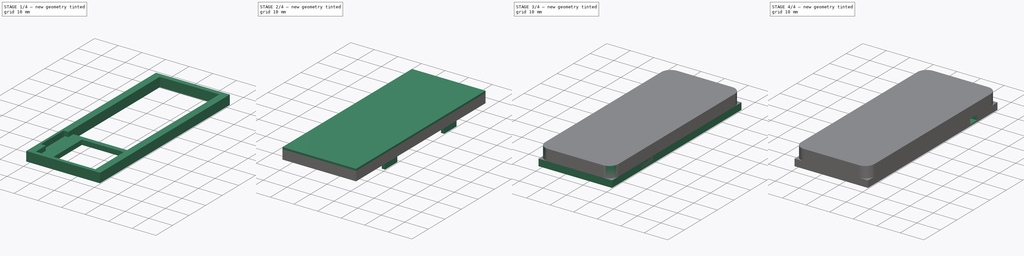
[diagram: build sequence overview — one tinted view per stage of 4, left to right]
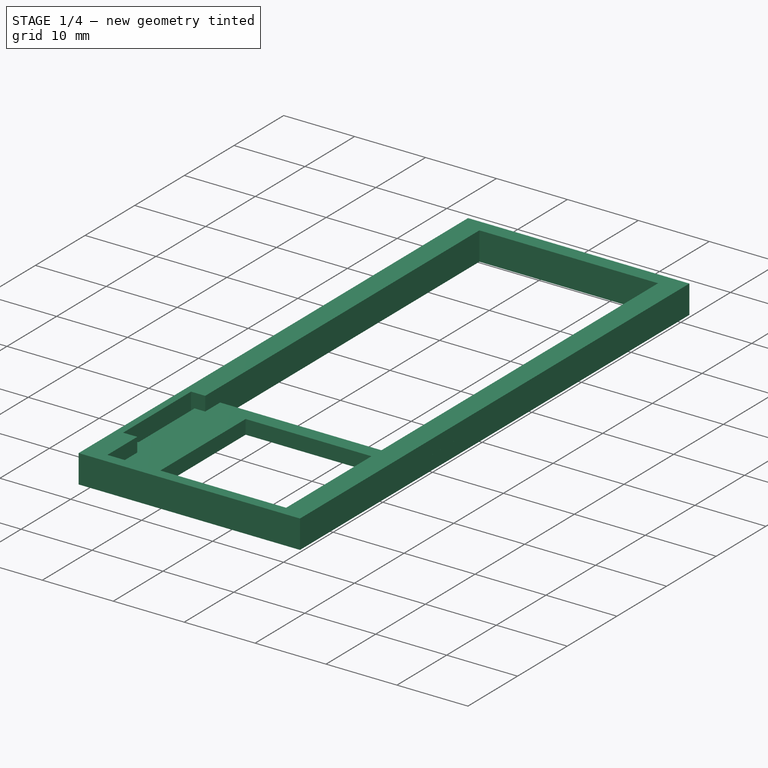
[diagram: stage 1 of 4 — iso view after this stage's code; geometry added in this stage tinted green]
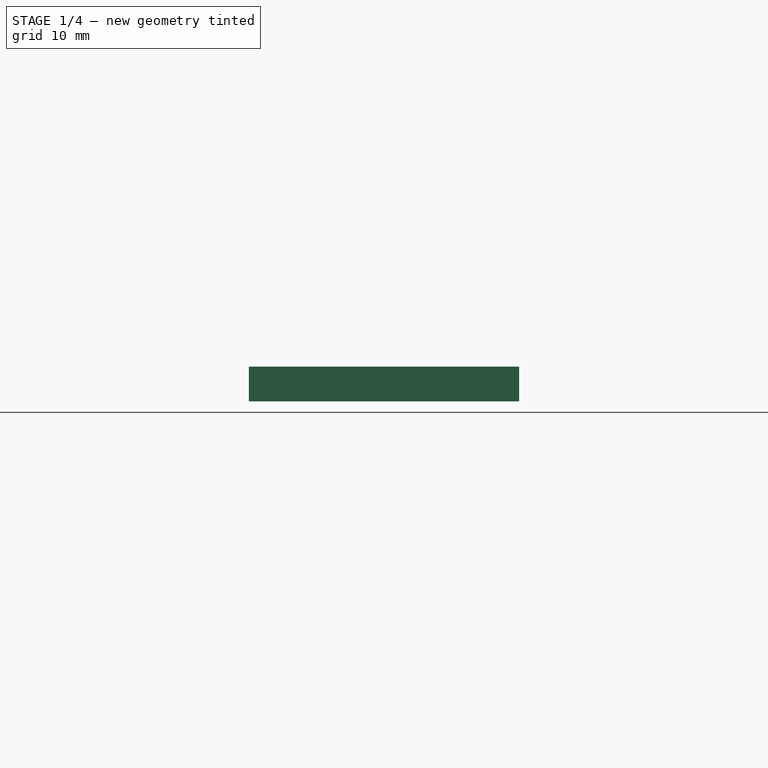
[diagram: stage 1 of 4 — front view after this stage's code; geometry added in this stage tinted green]
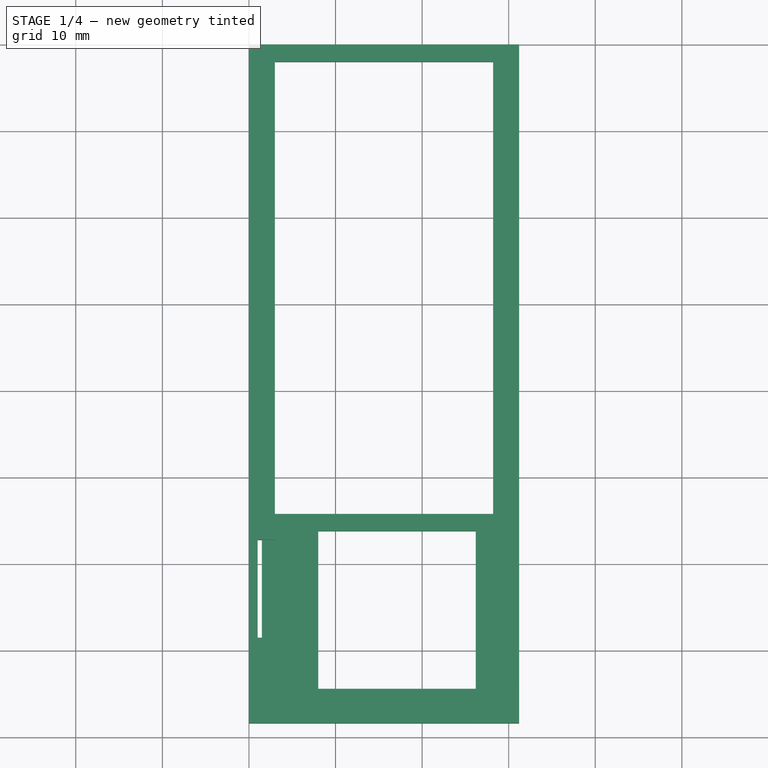
[diagram: stage 1 of 4 — top view after this stage's code; geometry added in this stage tinted green]
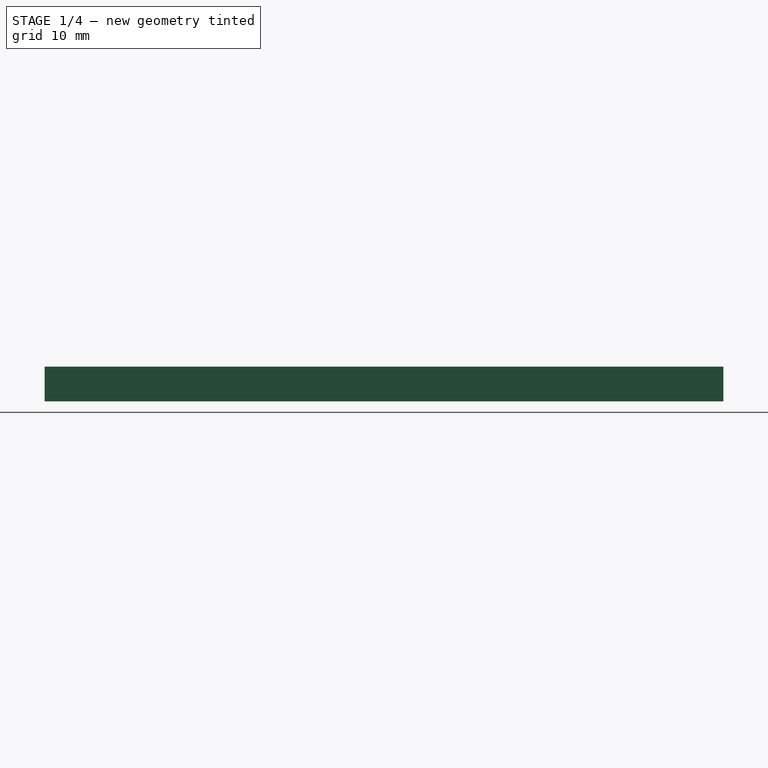
[diagram: stage 1 of 4 — right view after this stage's code; geometry added in this stage tinted green]
FCSTD DOCUMENT  (FreeCAD 0.21R33771 (Git))
Label: gpspeed-2.0
License: All rights reserved
LicenseURL: http://en.wikipedia.org/wiki/All_rights_reserved
objects: Sketcher::SketchObject×11, PartDesign::Pad×7, PartDesign::Pocket×4, PartDesign::Fillet×3, PartDesign::Body×3, Part::Feature×3
note: 45 computed .brp shape members not serialized (recipe doc carries the construction recipe); baked Part::Feature solids carry a one-line shape summary decoded from their .brp

FEATURE [Sketcher::SketchObject] Sketch
  FullyConstrained = true
  MapMode = 5
  Support = -> [XY_Plane]
  sketch-geometry (12):
    g0: LineSegment StartX=3 StartY=-54.2 StartZ=0 EndX=28.2 EndY=-54.2 EndZ=0
    g1: LineSegment StartX=28.2 StartY=-54.2 StartZ=0 EndX=28.2 EndY=-2 EndZ=0
    g2: LineSegment StartX=28.2 StartY=-2 StartZ=0 EndX=3 EndY=-2 EndZ=0
    g3: LineSegment StartX=3 StartY=-2 StartZ=0 EndX=3 EndY=-54.2 EndZ=0
    g4: LineSegment StartX=0 StartY=0 StartZ=0 EndX=31.2 EndY=0 EndZ=0
    g5: LineSegment StartX=31.2 StartY=0 StartZ=0 EndX=31.2 EndY=-78.4 EndZ=0
    g6: LineSegment StartX=31.2 StartY=-78.4 StartZ=0 EndX=0 EndY=-78.4 EndZ=0
    g7: LineSegment StartX=0 StartY=-78.4 StartZ=0 EndX=0 EndY=0 EndZ=0
    g8: LineSegment StartX=8 StartY=-56.2 StartZ=0 EndX=26.2 EndY=-56.2 EndZ=0
    g9: LineSegment StartX=26.2 StartY=-56.2 StartZ=0 EndX=26.2 EndY=-74.4 EndZ=0
    g10: LineSegment StartX=26.2 StartY=-74.4 StartZ=0 EndX=8 EndY=-74.4 EndZ=0
    g11: LineSegment StartX=8 StartY=-74.4 StartZ=0 EndX=8 EndY=-56.2 EndZ=0
  constraints (35):
    c: Coincident(g0,g1)
    c: Coincident(g1,g2)
    c: Coincident(g2,g3)
    c: Coincident(g3,g0)
    c: Horizontal(g0)
    c: Vertical(g3)
    c: DistanceX(g0,g0) = 25.2
    c: DistanceY(g1,g1) = 52.2
    c: Coincident(g4,g5)
    c: Coincident(g5,g6)
    c: Coincident(g6,g7)
    c: Coincident(g7,g4)
    c: Horizontal(g6)
    c: Vertical(g7)
    c: DistanceX(g4,g2) = 3
    c: DistanceY(g1,g4) = 2
    c: Vertical(g5)
    c: Coincident(g8,g9)
    c: Coincident(g9,g10)
    c: Coincident(g10,g11)
    c: Coincident(g11,g8)
    c: Horizontal(g8)
    c: Horizontal(g10)
    c: Vertical(g9)
    c: Vertical(g11)
    c: Equal(g8,g9)
    c: DistanceY(g11,g11) = 18.2
    c: DistanceY(g9,g0) = 2
    c: DistanceX(g8,g0) = 2
    c: DistanceY(g5,g9) = 4
    c: Vertical(g1)
    c: Horizontal(g2)
    c: Coincident(g4,g-1)
    c: Horizontal(g4)
    c: DistanceX(g1,g4) = 3
FEATURE [PartDesign::Pad] Pad
  Direction = (1,1,1)
  Length = 2
  Length2 = 100
  Profile = -> Sketch
  Type = 0
FEATURE [Sketcher::SketchObject] Sketch001
  FullyConstrained = false
  MapMode = 5
  Support = -> [XY_Plane001]
  sketch-geometry (12):
    g0: LineSegment StartX=0 StartY=0 StartZ=0 EndX=31.2 EndY=0 EndZ=0
    g1: LineSegment StartX=31.2 StartY=0 StartZ=0 EndX=31.2 EndY=-78.4 EndZ=0
    g2: LineSegment StartX=31.2 StartY=-78.4 StartZ=0 EndX=0 EndY=-78.4 EndZ=0
    g3: LineSegment StartX=0 StartY=-78.4 StartZ=0 EndX=0 EndY=0 EndZ=0
    g4: LineSegment StartX=3 StartY=-2 StartZ=0 EndX=28.2 EndY=-2 EndZ=0
    g5: LineSegment StartX=28.2 StartY=-2 StartZ=0 EndX=28.2 EndY=-76.9 EndZ=0
    g6: LineSegment StartX=28.2 StartY=-76.9 StartZ=0 EndX=3 EndY=-76.9 EndZ=0
    g7: LineSegment StartX=3 StartY=-76.9 StartZ=0 EndX=3 EndY=-70.8861 EndZ=0
    g8: LineSegment StartX=3 StartY=-57.2064 StartZ=0 EndX=1 EndY=-57.2064 EndZ=0
    g9: LineSegment StartX=1 StartY=-57.2064 StartZ=0 EndX=1 EndY=-70.8861 EndZ=0
    g10: LineSegment StartX=1 StartY=-70.8861 StartZ=0 EndX=3 EndY=-70.8861 EndZ=0
    g11: LineSegment StartX=3 StartY=-57.2064 StartZ=0 EndX=3 EndY=-2 EndZ=0
  constraints (32):
    c: Coincident(g0,g1)
    c: Coincident(g1,g2)
    c: Coincident(g2,g3)
    c: Coincident(g3,g0)
    c: Horizontal(g0)
    c: Horizontal(g2)
    c: Vertical(g1)
    c: Vertical(g3)
    c: Coincident(g0,g-1)
    c: DistanceY(g1,g1) = 78.4
    c: DistanceX(g2,g2) = 31.2
    c: Coincident(g4,g5)
    c: Coincident(g5,g6)
    c: Coincident(g6,g7)
    c: Coincident(g11,g4)
    c: Horizontal(g4)
    c: Horizontal(g6)
    c: Vertical(g5)
    c: Vertical(g7)
    c: DistanceX(g5,g1) = 3
    c: DistanceY(g1,g5) = 1.5
    c: DistanceX(g2,g6) = 3
    c: DistanceY(g4,g0) = 2
    c: Horizontal(g8)
    c: Coincident(g8,g9)
    c: Vertical(g9)
    c: Coincident(g9,g10)
    c: Horizontal(g10)
    c: Coincident(g7,g10)
    c: Coincident(g11,g8)
    c: Tangent(g7,g11)
    c: Distance(g8,g3) = 1
FEATURE [PartDesign::Pad] Pad001
  Direction = (1,1,1)
  Length = 4
  Length2 = 100
  Profile = -> Sketch001
  Type = 0
FEATURE [Sketcher::SketchObject] Sketch007
  ExternalGeometry = -> [Pad]
  FullyConstrained = false
  MapMode = 5
  Placement = pos=(0,0,0) rot=(1,0,0;3.14159rad)
  Support = -> [Pad]
  sketch-geometry (16):
    g0: LineSegment StartX=-9.78288 StartY=68.5 StartZ=0 EndX=1.5 EndY=68.5 EndZ=0
    g1: LineSegment StartX=1.5 StartY=68.5 StartZ=0 EndX=1.5 EndY=53.3 EndZ=0
    g2: LineSegment StartX=1.5 StartY=53.3 StartZ=0 EndX=-9.78288 EndY=53.3 EndZ=0
    g3: LineSegment StartX=-9.78288 StartY=53.3 StartZ=0 EndX=-9.78288 EndY=68.5 EndZ=0
    g4: LineSegment StartX=-11.0683 StartY=25.1 StartZ=0 EndX=1.5 EndY=25.1 EndZ=0
    g5: LineSegment StartX=1.5 StartY=25.1 StartZ=0 EndX=1.5 EndY=9.9 EndZ=0
    g6: LineSegment StartX=1.5 StartY=9.9 StartZ=0 EndX=-11.0683 EndY=9.9 EndZ=0
    g7: LineSegment StartX=-11.0683 StartY=9.9 StartZ=0 EndX=-11.0683 EndY=25.1 EndZ=0
    g8: LineSegment StartX=29.7 StartY=68.5 StartZ=0 EndX=58.0831 EndY=68.5 EndZ=0
    g9: LineSegment StartX=58.0831 StartY=68.5 StartZ=0 EndX=58.0831 EndY=53.3 EndZ=0
    g10: LineSegment StartX=58.0831 StartY=53.3 StartZ=0 EndX=29.7 EndY=53.3 EndZ=0
    g11: LineSegment StartX=29.7 StartY=53.3 StartZ=0 EndX=29.7 EndY=68.5 EndZ=0
    g12: LineSegment StartX=29.7 StartY=25.1 StartZ=0 EndX=61.6229 EndY=25.1 EndZ=0
    g13: LineSegment StartX=61.6229 StartY=25.1 StartZ=0 EndX=61.6229 EndY=9.9 EndZ=0
    g14: LineSegment StartX=61.6229 StartY=9.9 StartZ=0 EndX=29.7 EndY=9.9 EndZ=0
    g15: LineSegment StartX=29.7 StartY=9.9 StartZ=0 EndX=29.7 EndY=25.1 EndZ=0
  constraints (45):
    c: Coincident(g0,g1)
    c: Coincident(g1,g2)
    c: Coincident(g2,g3)
    c: Coincident(g3,g0)
    c: Horizontal(g0)
    c: Horizontal(g2)
    c: Vertical(g1)
    c: Vertical(g3)
    c: Coincident(g4,g5)
    c: Coincident(g5,g6)
    c: Coincident(g6,g7)
    c: Coincident(g7,g4)
    c: Horizontal(g4)
    c: Horizontal(g6)
    c: Vertical(g5)
    c: Vertical(g7)
    c: Equal(g5,g1)
    c: DistanceY(g1,g1) = 15.2
    c: DistanceY(g0,g-3) = 9.9
    c: DistanceY(g-1,g6) = 9.9
    c: PointOnObject(g4,g1)
    c: DistanceX(g-3,g0) = 1.5
    c: Coincident(g8,g9)
    c: Coincident(g9,g10)
    c: Coincident(g10,g11)
    c: Coincident(g11,g8)
    c: Horizontal(g8)
    c: Horizontal(g10)
    c: Vertical(g9)
    c: Vertical(g11)
    c: PointOnObject(g8,g0)
    c: Coincident(g12,g13)
    c: Coincident(g13,g14)
    c: Coincident(g14,g15)
    c: Coincident(g15,g12)
    c: Horizontal(g12)
    c: Horizontal(g14)
    c: Vertical(g13)
    c: Vertical(g15)
    c: Equal(g15,g11)
    c: PointOnObject(g12,g4)
    c: PointOnObject(g12,g11)
    c: DistanceX(g8,g-3) = 1.5
    c: Equal(g1,g11)
    c: Equal(g11,g15)
FEATURE [PartDesign::Pocket] Pocket002
  BaseFeature = -> Pad
  Direction = (1,1,1)
  Length = 5
  Length2 = 100
  Profile = -> Sketch007
  Type = 0
FEATURE [PartDesign::Body] Body001  label="dessous"
  Group = -> [Sketch001,Pad001,Sketch002,Pad002,Sketch006,Pocket001,Sketch009,Pad006,Fillet001]
  Origin = -> Origin001
  Placement = pos=(0,0,6) rot=(0,0,1;0rad)
  Tip = -> Fillet001
FEATURE [PartDesign::Fillet] Fillet002
  Base = -> Pocket002 [Edge2,Edge1,Edge69,Edge70]
  BaseFeature = -> Pocket002
  Radius = 4
  SupportTransform = false
  UseAllEdges = false
FEATURE [PartDesign::Body] Body  label="milieu"
  Group = -> [Sketch,Pad,Sketch007,Pocket002,Fillet002]
  Origin = -> Origin
  Tip = -> Fillet002
FEATURE [Part::Feature] Body003  label="dessus001"
  Placement = pos=(0,0,25) rot=(0,0,1;0rad)
  shape: bbox 31.2 x 78.4 x 5.1 mm, 65 faces (baked)
FEATURE [Part::Feature] Body004  label="dessous001"
  Placement = pos=(0,0,27) rot=(0,0,1;0rad)
  shape: bbox 31.2 x 78.4 x 7 mm, 52 faces (baked)
FEATURE [Part::Feature] Body005  label="milieu001"
  Placement = pos=(0,0,25) rot=(0,0,1;0rad)
  shape: bbox 31.2 x 78.4 x 2 mm, 34 faces (baked)
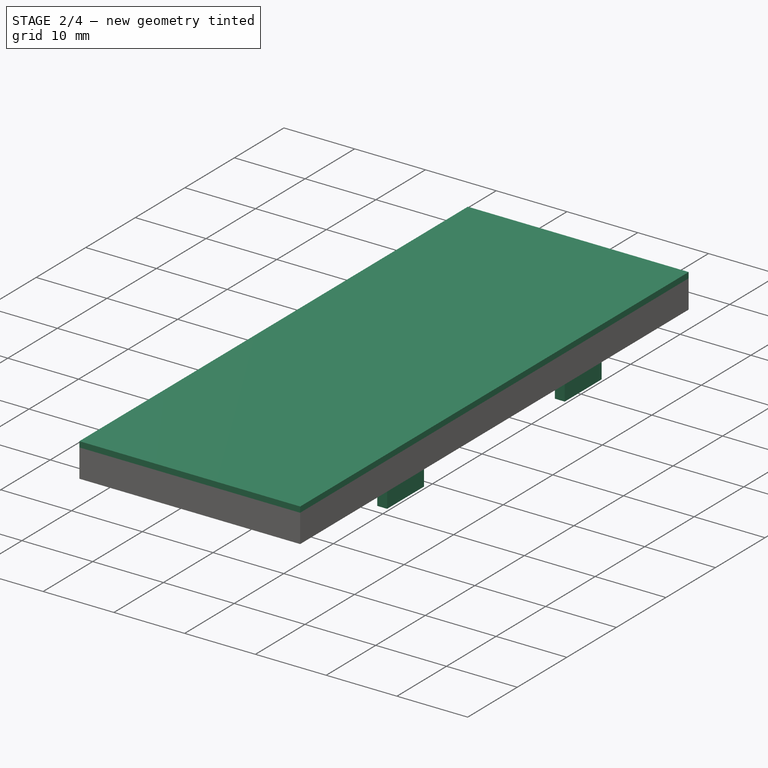
[diagram: stage 2 of 4 — iso view after this stage's code; geometry added in this stage tinted green]
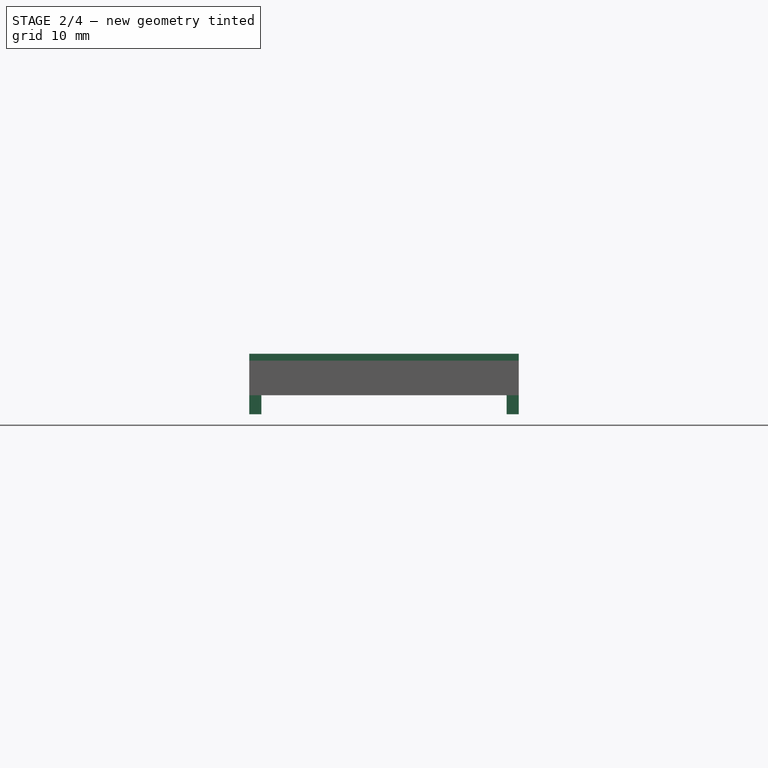
[diagram: stage 2 of 4 — front view after this stage's code; geometry added in this stage tinted green]
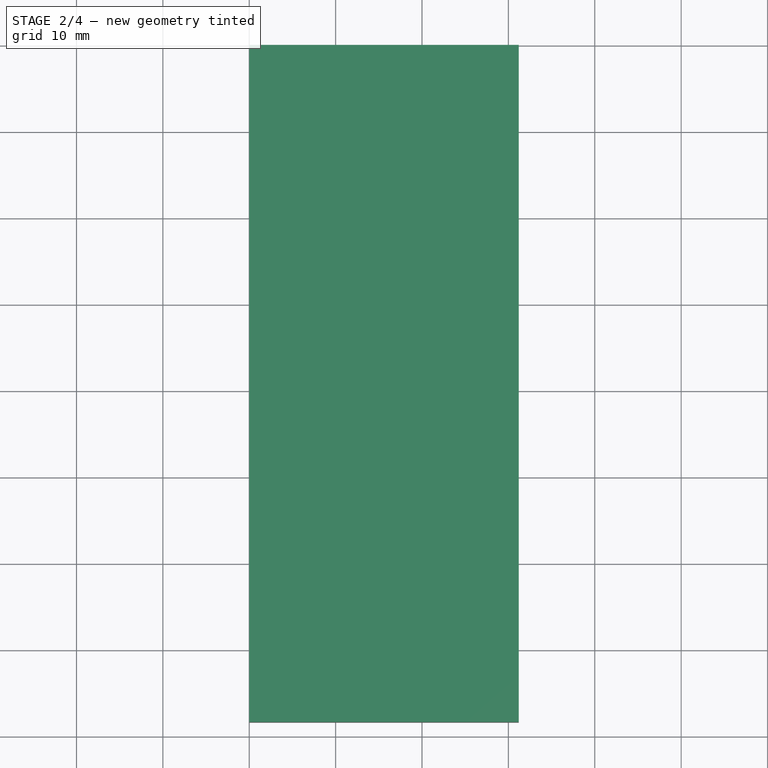
[diagram: stage 2 of 4 — top view after this stage's code; geometry added in this stage tinted green]
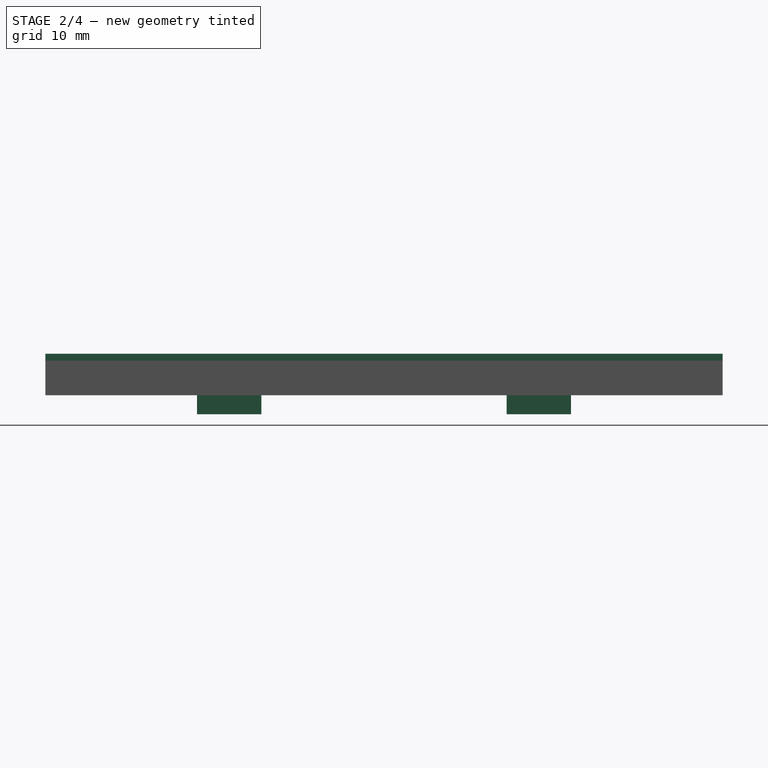
[diagram: stage 2 of 4 — right view after this stage's code; geometry added in this stage tinted green]
FEATURE [Sketcher::SketchObject] Sketch002
  ExternalGeometry = -> [Pad001]
  FullyConstrained = true
  MapMode = 5
  Placement = pos=(0,0,4) rot=(0,0,1;0rad)
  Support = -> [Pad001]
  sketch-geometry (4):
    g0: LineSegment StartX=31.2 StartY=-78.4 StartZ=0 EndX=0 EndY=-78.4 EndZ=0
    g1: LineSegment StartX=0 StartY=-78.4 StartZ=0 EndX=0 EndY=0 EndZ=0
    g2: LineSegment StartX=0 StartY=0 StartZ=0 EndX=31.2 EndY=0 EndZ=0
    g3: LineSegment StartX=31.2 StartY=0 StartZ=0 EndX=31.2 EndY=-78.4 EndZ=0
  constraints (10):
    c: Coincident(g0,g1)
    c: Coincident(g1,g2)
    c: Coincident(g2,g3)
    c: Coincident(g3,g0)
    c: Horizontal(g0)
    c: Horizontal(g2)
    c: Vertical(g1)
    c: Vertical(g3)
    c: Coincident(g0,g-3)
    c: Coincident(g1,g-1)
FEATURE [PartDesign::Pad] Pad002
  BaseFeature = -> Pad001
  Direction = (1,1,1)
  Length = 0.8
  Length2 = 100
  Profile = -> Sketch002
  Type = 0
FEATURE [Sketcher::SketchObject] Sketch006
  ExternalGeometry = -> [Pad002]
  FullyConstrained = false
  MapMode = 5
  Placement = pos=(0,0,0) rot=(0,0.707107,0.707107;3.14159rad)
  Support = -> [Pad002]
  sketch-geometry (5):
    g0: LineSegment StartX=-15.6 StartY=12.3411 StartZ=0 EndX=-15.6 EndY=-16.7245 EndZ=0
    g1: LineSegment StartX=-17.6 StartY=2 StartZ=0 EndX=-13.6 EndY=2 EndZ=0
    g2: LineSegment StartX=-13.6 StartY=2 StartZ=0 EndX=-13.6 EndY=0 EndZ=0
    g3: LineSegment StartX=-13.6 StartY=0 StartZ=0 EndX=-17.6 EndY=0 EndZ=0
    g4: LineSegment StartX=-17.6 StartY=0 StartZ=0 EndX=-17.6 EndY=2 EndZ=0
  constraints (12):
    c: Symmetric(g-3,g-3,g0)
    c: Coincident(g1,g2)
    c: Coincident(g2,g3)
    c: Coincident(g3,g4)
    c: Coincident(g4,g1)
    c: Horizontal(g3)
    c: Vertical(g2)
    c: Vertical(g4)
    c: Symmetric(g1,g1,g0)
    c: DistanceX(g1,g1) = 4
    c: DistanceY(g2,g2) = 2
    c: PointOnObject(g2,g-1)
FEATURE [PartDesign::Pocket] Pocket001
  BaseFeature = -> Pad002
  Direction = (1,1,1)
  Length = 5
  Length2 = 100
  Profile = -> Sketch006
  Type = 0
FEATURE [Sketcher::SketchObject] Sketch009
  ExternalGeometry = -> [Pad002]
  FullyConstrained = true
  MapMode = 5
  Placement = pos=(0,0,0) rot=(1,0,0;3.14159rad)
  Support = -> [Pad002]
  sketch-geometry (16):
    g0: LineSegment StartX=0 StartY=60.85 StartZ=0 EndX=1.4 EndY=60.85 EndZ=0
    g1: LineSegment StartX=1.4 StartY=60.85 StartZ=0 EndX=1.4 EndY=53.4 EndZ=0
    g2: LineSegment StartX=1.4 StartY=53.4 StartZ=0 EndX=0 EndY=53.4 EndZ=0
    g3: LineSegment StartX=0 StartY=53.4 StartZ=0 EndX=0 EndY=60.85 EndZ=0
    g4: LineSegment StartX=0 StartY=25 StartZ=0 EndX=1.4 EndY=25 EndZ=0
    g5: LineSegment StartX=1.4 StartY=25 StartZ=0 EndX=1.4 EndY=17.55 EndZ=0
    g6: LineSegment StartX=1.4 StartY=17.55 StartZ=0 EndX=0 EndY=17.55 EndZ=0
    g7: LineSegment StartX=0 StartY=17.55 StartZ=0 EndX=0 EndY=25 EndZ=0
    g8: LineSegment StartX=31.2 StartY=25 StartZ=0 EndX=29.8 EndY=25 EndZ=0
    g9: LineSegment StartX=29.8 StartY=25 StartZ=0 EndX=29.8 EndY=17.55 EndZ=0
    g10: LineSegment StartX=29.8 StartY=17.55 StartZ=0 EndX=31.2 EndY=17.55 EndZ=0
    g11: LineSegment StartX=31.2 StartY=17.55 StartZ=0 EndX=31.2 EndY=25 EndZ=0
    g12: LineSegment StartX=31.2 StartY=53.4 StartZ=0 EndX=29.8 EndY=53.4 EndZ=0
    g13: LineSegment StartX=29.8 StartY=53.4 StartZ=0 EndX=29.8 EndY=60.85 EndZ=0
    g14: LineSegment StartX=29.8 StartY=60.85 StartZ=0 EndX=31.2 EndY=60.85 EndZ=0
    g15: LineSegment StartX=31.2 StartY=60.85 StartZ=0 EndX=31.2 EndY=53.4 EndZ=0
  constraints (48):
    c: Coincident(g0,g1)
    c: Coincident(g1,g2)
    c: Coincident(g2,g3)
    c: Coincident(g3,g0)
    c: Horizontal(g0)
    c: Horizontal(g2)
    c: Vertical(g1)
    c: Vertical(g3)
    c: PointOnObject(g0,g-5)
    c: Coincident(g4,g5)
    c: Coincident(g5,g6)
    c: Coincident(g6,g7)
    c: Coincident(g7,g4)
    c: Horizontal(g4)
    c: Horizontal(g6)
    c: Vertical(g5)
    c: Vertical(g7)
    c: PointOnObject(g4,g-5)
    c: Coincident(g8,g9)
    c: Coincident(g9,g10)
    c: Coincident(g10,g11)
    c: Coincident(g11,g8)
    c: Horizontal(g8)
    c: Horizontal(g10)
    c: Vertical(g9)
    c: Vertical(g11)
    c: PointOnObject(g8,g-4)
    c: Coincident(g12,g13)
    c: Coincident(g13,g14)
    c: Coincident(g14,g15)
    c: Coincident(g15,g12)
    c: Horizontal(g12)
    c: Horizontal(g14)
    c: Vertical(g13)
    c: Vertical(g15)
    c: PointOnObject(g12,g-4)
    c: PointOnObject(g13,g0)
    c: PointOnObject(g8,g4)
    c: Equal(g12,g2)
    c: Equal(g2,g4)
    c: Equal(g4,g8)
    c: DistanceX(g14,g14) = 1.4
    c: DistanceY(g-4,g10) = 17.55
    c: Equal(g5,g1)
    c: Equal(g1,g13)
    c: Equal(g5,g9)
    c: DistanceY(g11,g11) = 7.45
    c: DistanceY(g0,g-5) = 17.55
FEATURE [PartDesign::Pad] Pad006
  BaseFeature = -> Pocket001
  Direction = (1,1,1)
  Length = 2.2
  Length2 = 100
  Profile = -> Sketch009
  Type = 0
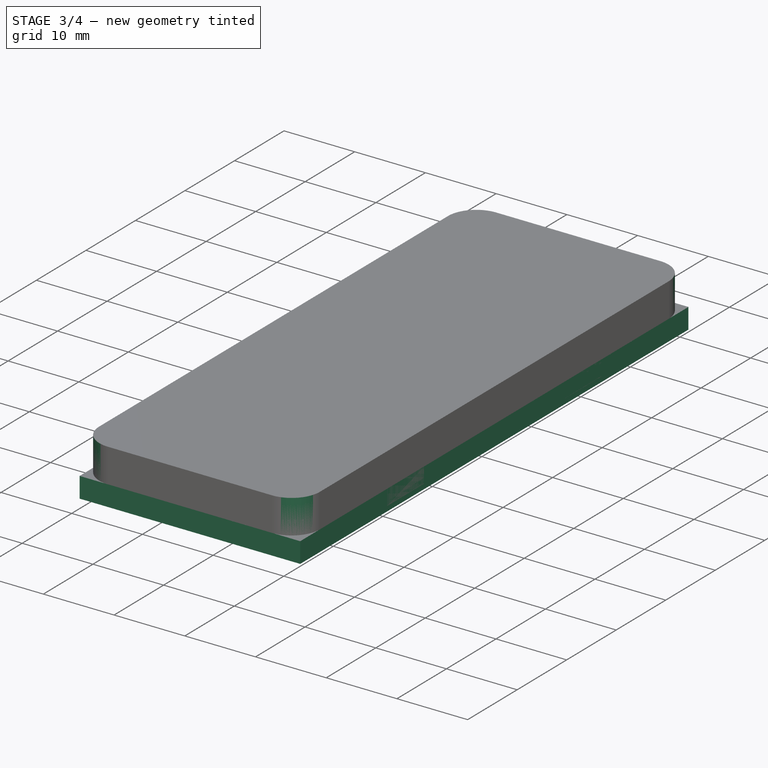
[diagram: stage 3 of 4 — iso view after this stage's code; geometry added in this stage tinted green]
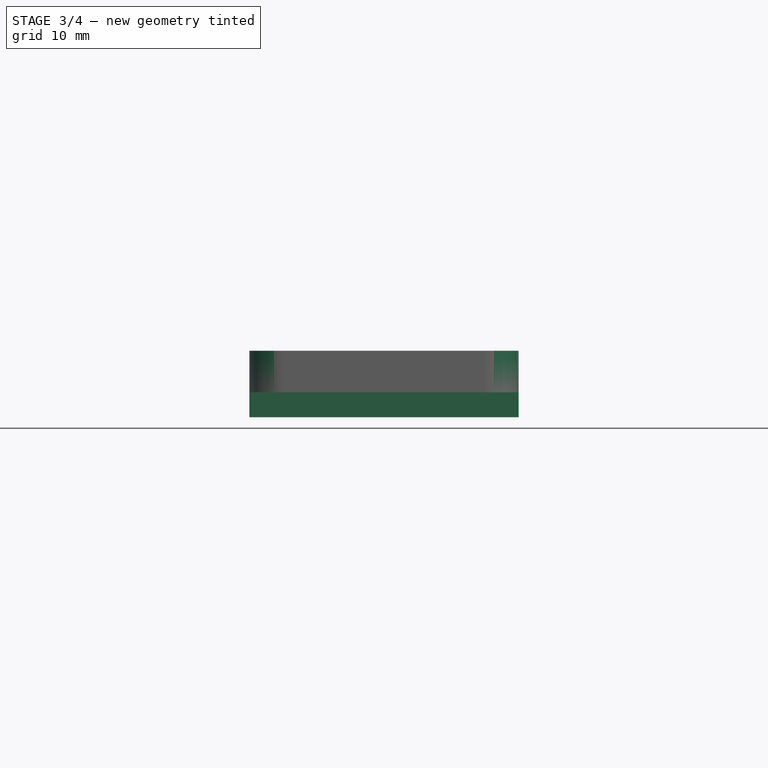
[diagram: stage 3 of 4 — front view after this stage's code; geometry added in this stage tinted green]
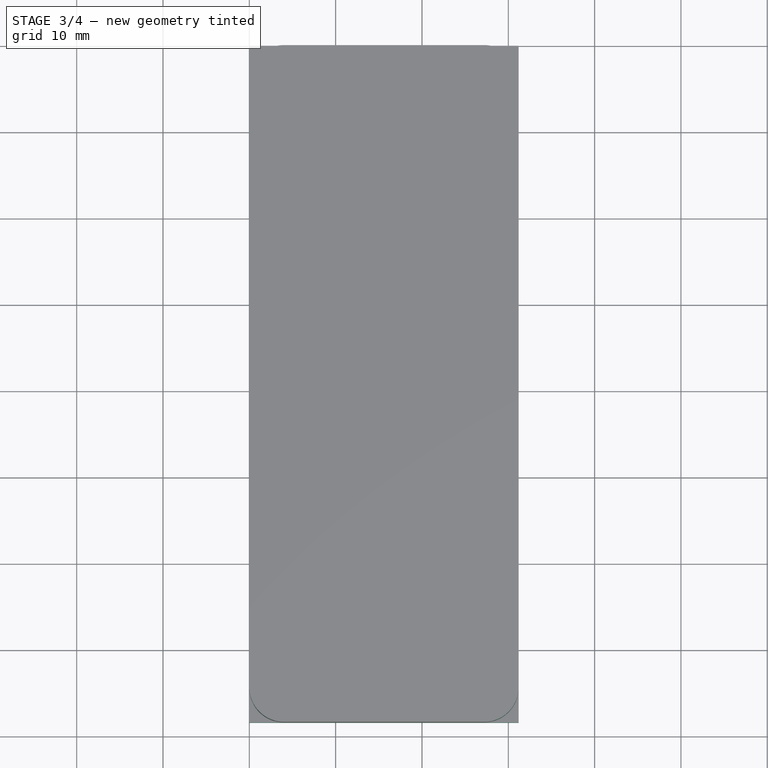
[diagram: stage 3 of 4 — top view after this stage's code; geometry added in this stage tinted green]
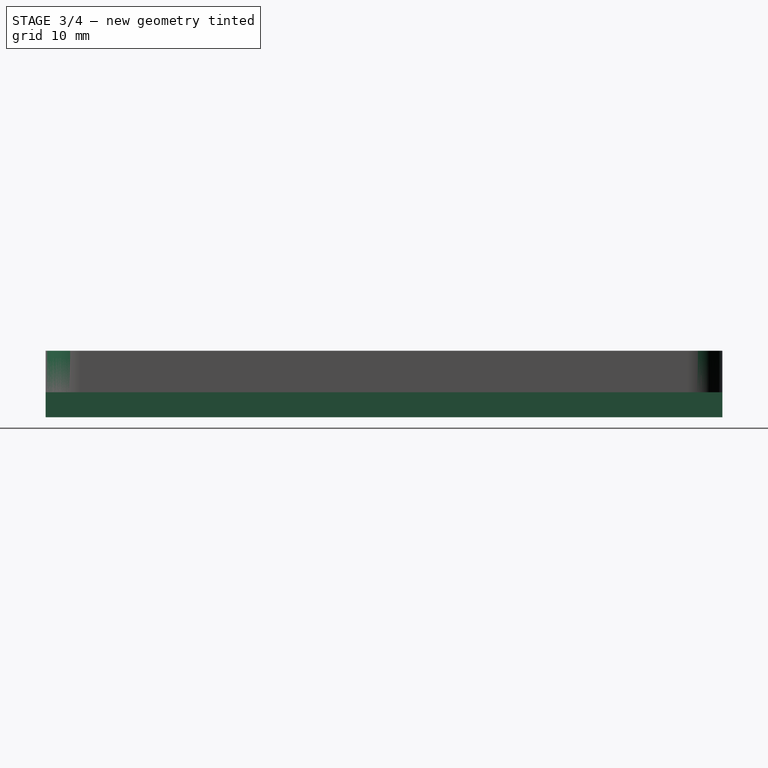
[diagram: stage 3 of 4 — right view after this stage's code; geometry added in this stage tinted green]
FEATURE [Sketcher::SketchObject] Sketch003
  FullyConstrained = false
  MapMode = 5
  Support = -> [XY_Plane002]
  sketch-geometry (13):
    g0: LineSegment StartX=31.2 StartY=0 StartZ=0 EndX=20.6 EndY=0 EndZ=0
    g1: LineSegment StartX=0 StartY=0 StartZ=0 EndX=0 EndY=-78.4 EndZ=0
    g2: LineSegment StartX=0 StartY=-78.4 StartZ=0 EndX=31.2 EndY=-78.4 EndZ=0
    g3: LineSegment StartX=31.2 StartY=-78.4 StartZ=0 EndX=31.2 EndY=0 EndZ=0
    g4: LineSegment StartX=3 StartY=-2 StartZ=0 EndX=10.6 EndY=-2 EndZ=0
    g5: LineSegment StartX=28.2 StartY=-2 StartZ=0 EndX=28.2 EndY=-74.4 EndZ=0
    g6: LineSegment StartX=28.2 StartY=-74.4 StartZ=0 EndX=3 EndY=-74.4 EndZ=0
    g7: LineSegment StartX=15.6 StartY=-21.1387 StartZ=0 EndX=15.6 EndY=2.1046 EndZ=0
    g8: LineSegment StartX=20.6 StartY=0 StartZ=0 EndX=20.6 EndY=-2 EndZ=0
    g9: LineSegment StartX=10.6 StartY=-2 StartZ=0 EndX=10.6 EndY=0 EndZ=0
    g10: LineSegment StartX=20.6 StartY=-2 StartZ=0 EndX=28.2 EndY=-2 EndZ=0
    g11: LineSegment StartX=10.6 StartY=0 StartZ=0 EndX=0 EndY=0 EndZ=0
    g12: LineSegment StartX=3 StartY=-74.4 StartZ=0 EndX=3 EndY=-2 EndZ=0
  constraints (33):
    c: Coincident(g11,g1)
    c: Coincident(g2,g3)
    c: Coincident(g3,g0)
    c: Horizontal(g0)
    c: Horizontal(g2)
    c: Vertical(g1)
    c: Vertical(g3)
    c: Coincident(g-1,g11)
    c: DistanceY(g3,g3) = 78.4
    c: DistanceX(g2,g2) = 31.2
    c: Coincident(g10,g5)
    c: Coincident(g5,g6)
    c: Coincident(g12,g4)
    c: Horizontal(g4)
    c: Horizontal(g6)
    c: Vertical(g5)
    c: DistanceX(g10,g0) = 3
    c: DistanceX(g11,g4) = 3
    c: DistanceY(g2,g5) = 4
    c: Symmetric(g0,g11,g7)
    c: Vertical(g8)
    c: Vertical(g9)
    c: Coincident(g4,g9)
    c: Tangent(g4,g10)
    c: Tangent(g0,g11)
    c: Coincident(g9,g11)
    c: Coincident(g10,g8)
    c: Coincident(g0,g8)
    c: Symmetric(g9,g0,g7)
    c: DistanceX(g9,g0) = 10
    c: DistanceY(g5,g0) = 2
    c: Coincident(g1,g2)
    c: Coincident(g6,g12)
FEATURE [PartDesign::Pad] Pad003
  Direction = (1,1,1)
  Length = 2.1
  Length2 = 100
  Profile = -> Sketch003
  Reversed = true
  Type = 0
FEATURE [Sketcher::SketchObject] Sketch004
  ExternalGeometry = -> [Pad003]
  FullyConstrained = false
  MapMode = 5
  Placement = pos=(0,0,-2.1) rot=(1,0,0;3.14159rad)
  Support = -> [Pad003]
  sketch-geometry (16):
    g0: LineSegment StartX=0 StartY=0 StartZ=0 EndX=0 EndY=78.4 EndZ=0
    g1: LineSegment StartX=0 StartY=78.4 StartZ=0 EndX=31.2 EndY=78.4 EndZ=0
    g2: LineSegment StartX=31.2 StartY=78.4 StartZ=0 EndX=31.2 EndY=0 EndZ=0
    g3: LineSegment StartX=31.2 StartY=0 StartZ=0 EndX=20.6 EndY=0 EndZ=0
    g4: LineSegment StartX=7 StartY=48.4 StartZ=0 EndX=24 EndY=48.4 EndZ=0
    g5: LineSegment StartX=24 StartY=48.4 StartZ=0 EndX=24 EndY=20.4 EndZ=0
    g6: LineSegment StartX=24 StartY=20.4 StartZ=0 EndX=7 EndY=20.4 EndZ=0
    g7: LineSegment StartX=7 StartY=20.4 StartZ=0 EndX=7 EndY=48.4 EndZ=0
    g8: LineSegment StartX=10.6 StartY=0 StartZ=0 EndX=10.6 EndY=9 EndZ=0
    g9: LineSegment StartX=10.6 StartY=9 StartZ=0 EndX=20.6 EndY=9 EndZ=0
    g10: LineSegment StartX=20.6 StartY=9 StartZ=0 EndX=20.6 EndY=0 EndZ=0
    g11: LineSegment StartX=10.6 StartY=0 StartZ=0 EndX=0 EndY=0 EndZ=0
    g12: LineSegment StartX=-7.60648 StartY=5.6 StartZ=0 EndX=40.6944 EndY=5.6 EndZ=0
    g13: Circle CenterX=7.41155 CenterY=5.6 CenterZ=0 NormalX=0 NormalY=0 NormalZ=1 AngleXU=0 Radius=2.5
    g14: Circle CenterX=23.7885 CenterY=5.6 CenterZ=0 NormalX=0 NormalY=0 NormalZ=1 AngleXU=0 Radius=2.5
    g15: LineSegment StartX=15.6 StartY=16.0297 StartZ=0 EndX=15.6 EndY=-18.9006 EndZ=0
  constraints (39):
    c: Coincident(g-1,g0)
    c: Coincident(g0,g-3)
    c: Coincident(g0,g1)
    c: Coincident(g1,g-3)
    c: Coincident(g1,g2)
    c: Vertical(g2)
    c: Coincident(g2,g3)
    c: Coincident(g11,g0)
    c: Coincident(g4,g5)
    c: Coincident(g5,g6)
    c: Coincident(g6,g7)
    c: Coincident(g7,g4)
    c: Horizontal(g4)
    c: Horizontal(g6)
    c: Vertical(g5)
    c: Vertical(g7)
    c: DistanceY(g4,g1) = 30
    c: DistanceY(g5,g5) = 28
    c: DistanceX(g0,g4) = 7
    c: DistanceX(g6,g6) = 17
    c: Vertical(g8)
    c: Coincident(g8,g9)
    c: Horizontal(g9)
    c: Coincident(g9,g10)
    c: Vertical(g10)
    c: Coincident(g3,g10)
    c: Coincident(g11,g8)
    c: Tangent(g3,g11)
    c: Coincident(g3,g-5)
    c: Coincident(g8,g-4)
    c: DistanceY(g10,g10) = 9
    c: Horizontal(g12)
    c: PointOnObject(g13,g12)
    c: Equal(g14,g13)
    c: Diameter(g14) = 5
    c: DistanceY(g-1,g12) = 5.6
    c: Vertical(g15)
    c: Symmetric(g0,g2,g15)
    c: Symmetric(g14,g13,g15)
FEATURE [PartDesign::Pad] Pad004
  BaseFeature = -> Pad003
  Direction = (1,1,1)
  Length = 0.8
  Length2 = 100
  Profile = -> Sketch004
  Type = 0
FEATURE [PartDesign::Body] Body002  label="dessus"
  Group = -> [Sketch003,Pad003,Sketch004,Pad004,Sketch005,Pocket,Sketch008,Pad005,Sketch010,Pocket003,Fillet]
  Origin = -> Origin002
  Placement = pos=(0,0,-4) rot=(0,0,1;0rad)
  Tip = -> Fillet
FEATURE [PartDesign::Fillet] Fillet001
  Base = -> Pad006 [Edge51,Edge8,Edge44,Edge6]
  BaseFeature = -> Pad006
  Radius = 4
  SupportTransform = false
  UseAllEdges = false
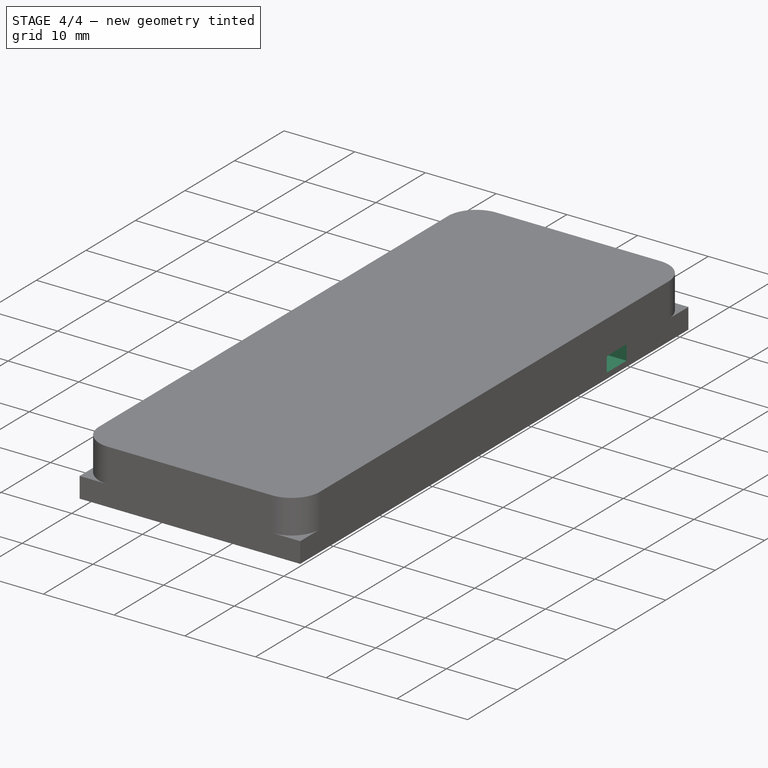
[diagram: stage 4 of 4 — iso view after this stage's code; geometry added in this stage tinted green]
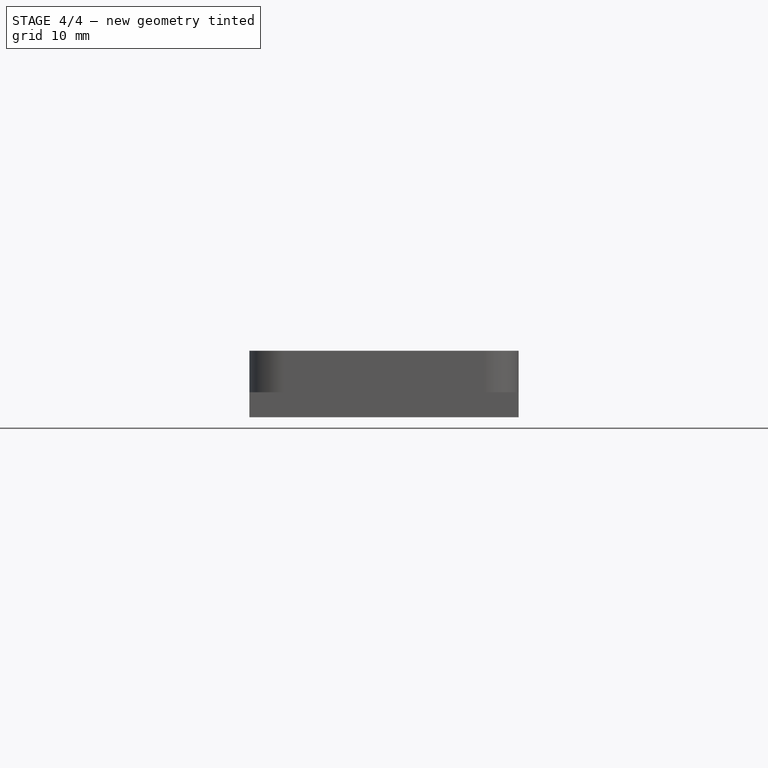
[diagram: stage 4 of 4 — front view after this stage's code; geometry added in this stage tinted green]
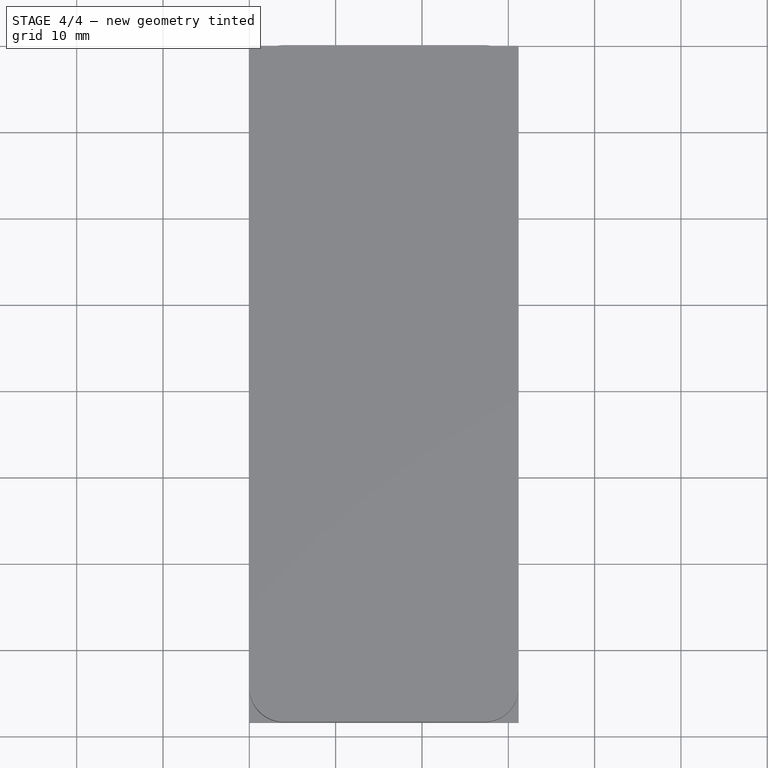
[diagram: stage 4 of 4 — top view after this stage's code; geometry added in this stage tinted green]
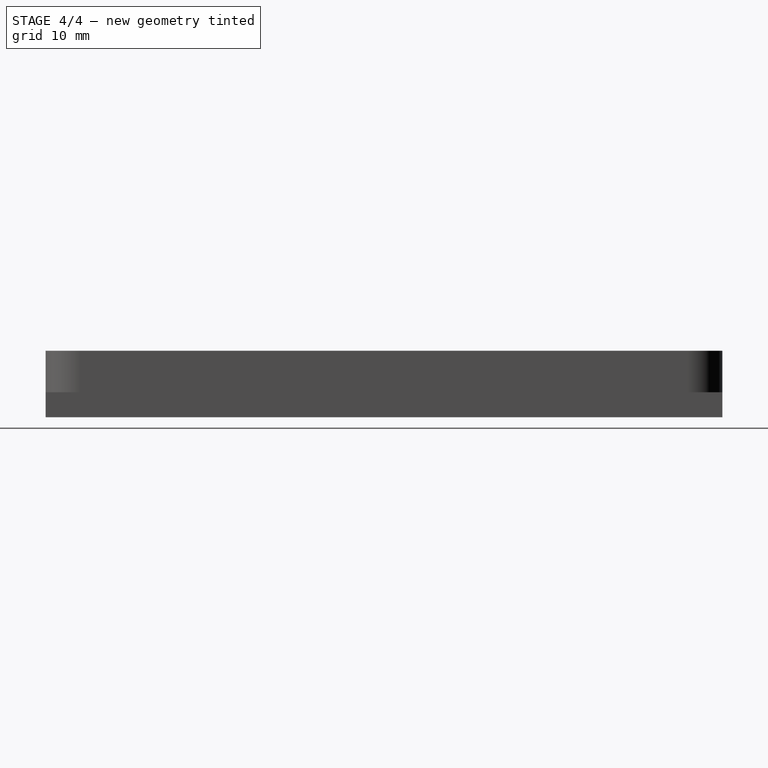
[diagram: stage 4 of 4 — right view after this stage's code; geometry added in this stage tinted green]
FEATURE [Sketcher::SketchObject] Sketch005
  ExternalGeometry = -> [Pad004]
  FullyConstrained = false
  MapMode = 5
  Placement = pos=(31.2,0,0) rot=(0.57735,0.57735,0.57735;2.0944rad)
  Support = -> [Pad004]
  sketch-geometry (4):
    g0: LineSegment StartX=-16.5 StartY=4.88484 StartZ=0 EndX=-12.5 EndY=4.88484 EndZ=0
    g1: LineSegment StartX=-12.5 StartY=4.88484 StartZ=0 EndX=-12.5 EndY=-2.1 EndZ=0
    g2: LineSegment StartX=-12.5 StartY=-2.1 StartZ=0 EndX=-16.5 EndY=-2.1 EndZ=0
    g3: LineSegment StartX=-16.5 StartY=-2.1 StartZ=0 EndX=-16.5 EndY=4.88484 EndZ=0
  constraints (11):
    c: Coincident(g0,g1)
    c: Coincident(g1,g2)
    c: Coincident(g2,g3)
    c: Coincident(g3,g0)
    c: Horizontal(g0)
    c: Horizontal(g2)
    c: Vertical(g1)
    c: Vertical(g3)
    c: PointOnObject(g1,g-3)
    c: DistanceX(g0,g0) = 4
    c: DistanceX(g1,g-3) = 12.5
FEATURE [PartDesign::Pocket] Pocket
  BaseFeature = -> Pad004
  Direction = (1,1,1)
  Length = 5
  Length2 = 100
  Profile = -> Sketch005
  Type = 0
FEATURE [Sketcher::SketchObject] Sketch008
  ExternalGeometry = -> [Pad004]
  FullyConstrained = true
  MapMode = 5
  Support = -> [Pad004]
  sketch-geometry (16):
    g0: LineSegment StartX=0 StartY=-10 StartZ=0 EndX=1.4 EndY=-10 EndZ=0
    g1: LineSegment StartX=1.4 StartY=-10 StartZ=0 EndX=1.4 EndY=-17.45 EndZ=0
    g2: LineSegment StartX=1.4 StartY=-17.45 StartZ=0 EndX=0 EndY=-17.45 EndZ=0
    g3: LineSegment StartX=0 StartY=-17.45 StartZ=0 EndX=0 EndY=-10 EndZ=0
    g4: LineSegment StartX=0 StartY=-60.95 StartZ=0 EndX=1.4 EndY=-60.95 EndZ=0
    g5: LineSegment StartX=1.4 StartY=-60.95 StartZ=0 EndX=1.4 EndY=-68.4 EndZ=0
    g6: LineSegment StartX=1.4 StartY=-68.4 StartZ=0 EndX=0 EndY=-68.4 EndZ=0
    g7: LineSegment StartX=0 StartY=-68.4 StartZ=0 EndX=0 EndY=-60.95 EndZ=0
    g8: LineSegment StartX=31.2 StartY=-10 StartZ=0 EndX=29.8 EndY=-10 EndZ=0
    g9: LineSegment StartX=29.8 StartY=-10 StartZ=0 EndX=29.8 EndY=-17.45 EndZ=0
    g10: LineSegment StartX=29.8 StartY=-17.45 StartZ=0 EndX=31.2 EndY=-17.45 EndZ=0
    g11: LineSegment StartX=31.2 StartY=-17.45 StartZ=0 EndX=31.2 EndY=-10 EndZ=0
    g12: LineSegment StartX=31.2 StartY=-60.95 StartZ=0 EndX=29.8 EndY=-60.95 EndZ=0
    g13: LineSegment StartX=29.8 StartY=-60.95 StartZ=0 EndX=29.8 EndY=-68.4 EndZ=0
    g14: LineSegment StartX=29.8 StartY=-68.4 StartZ=0 EndX=31.2 EndY=-68.4 EndZ=0
    g15: LineSegment StartX=31.2 StartY=-68.4 StartZ=0 EndX=31.2 EndY=-60.95 EndZ=0
  constraints (48):
    c: Coincident(g0,g1)
    c: Coincident(g1,g2)
    c: Coincident(g2,g3)
    c: Coincident(g3,g0)
    c: Horizontal(g0)
    c: Horizontal(g2)
    c: Vertical(g1)
    c: Vertical(g3)
    c: PointOnObject(g0,g-2)
    c: Coincident(g4,g5)
    c: Coincident(g5,g6)
    c: Coincident(g6,g7)
    c: Coincident(g7,g4)
    c: Horizontal(g4)
    c: Horizontal(g6)
    c: Vertical(g5)
    c: Vertical(g7)
    c: PointOnObject(g4,g-2)
    c: Coincident(g8,g9)
    c: Coincident(g9,g10)
    c: Coincident(g10,g11)
    c: Coincident(g11,g8)
    c: Horizontal(g8)
    c: Horizontal(g10)
    c: Vertical(g9)
    c: Vertical(g11)
    c: PointOnObject(g8,g-4)
    c: Coincident(g12,g13)
    c: Coincident(g13,g14)
    c: Coincident(g14,g15)
    c: Coincident(g15,g12)
    c: Horizontal(g12)
    c: Horizontal(g14)
    c: Vertical(g13)
    c: Vertical(g15)
    c: PointOnObject(g12,g-4)
    c: PointOnObject(g12,g4)
    c: PointOnObject(g8,g0)
    c: Equal(g3,g11)
    c: Equal(g11,g15)
    c: Equal(g15,g7)
    c: DistanceY(g-4,g14) = 10
    c: Equal(g14,g6)
    c: Equal(g6,g0)
    c: Equal(g0,g8)
    c: DistanceX(g8,g8) = 1.4
    c: DistanceY(g0,g-1) = 10
    c: DistanceY(g11,g11) = 7.45
FEATURE [PartDesign::Pad] Pad005
  BaseFeature = -> Pocket
  Direction = (1,1,1)
  Length = 2.2
  Length2 = 100
  Profile = -> Sketch008
  Type = 0
FEATURE [Sketcher::SketchObject] Sketch010
  ExternalGeometry = -> [Pad005]
  FullyConstrained = true
  MapMode = 5
  Support = -> [Pad005]
  sketch-geometry (4):
    g0: LineSegment StartX=28.2 StartY=-9 StartZ=0 EndX=29.8 EndY=-9 EndZ=0
    g1: LineSegment StartX=29.8 StartY=-9 StartZ=0 EndX=29.8 EndY=-18 EndZ=0
    g2: LineSegment StartX=29.8 StartY=-18 StartZ=0 EndX=28.2 EndY=-18 EndZ=0
    g3: LineSegment StartX=28.2 StartY=-18 StartZ=0 EndX=28.2 EndY=-9 EndZ=0
  constraints (12):
    c: Coincident(g0,g1)
    c: Coincident(g1,g2)
    c: Coincident(g2,g3)
    c: Coincident(g3,g0)
    c: Horizontal(g0)
    c: Horizontal(g2)
    c: Vertical(g1)
    c: Vertical(g3)
    c: PointOnObject(g0,g-3)
    c: DistanceX(g2,g2) = 1.6
    c: DistanceY(g3,g3) = 9
    c: DistanceY(g-1,g0) = -9
FEATURE [PartDesign::Pocket] Pocket003
  BaseFeature = -> Pad005
  Direction = (1,1,1)
  Length = 2.1
  Length2 = 100
  Profile = -> Sketch010
  Type = 0
FEATURE [PartDesign::Fillet] Fillet
  Base = -> Pad005 [Edge61,Edge1,Edge118,Edge123]
  BaseFeature = -> Pad005
  Radius = 4
  SupportTransform = false
  UseAllEdges = false
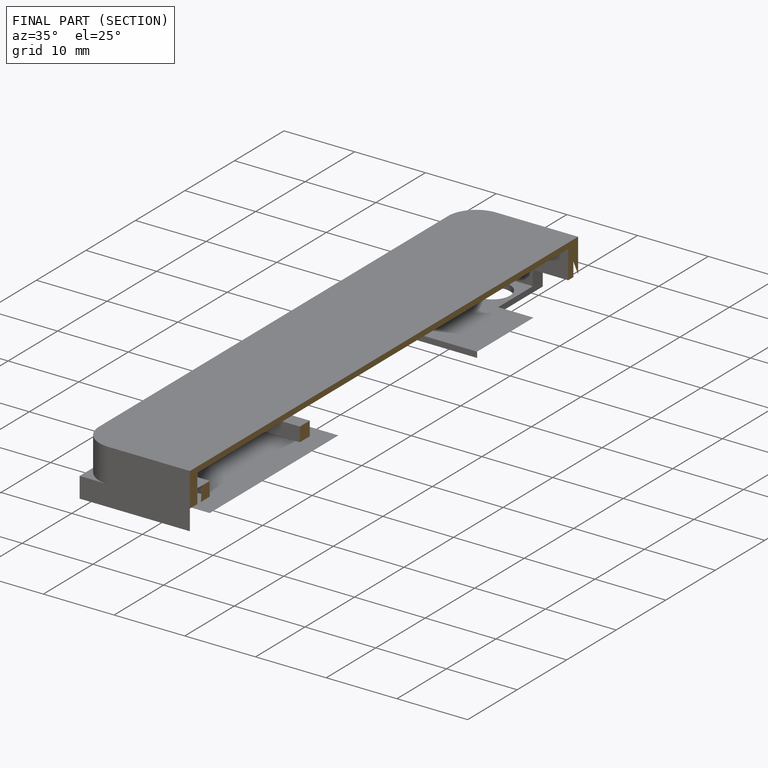
[diagram: finished part — half-section view (interior)]
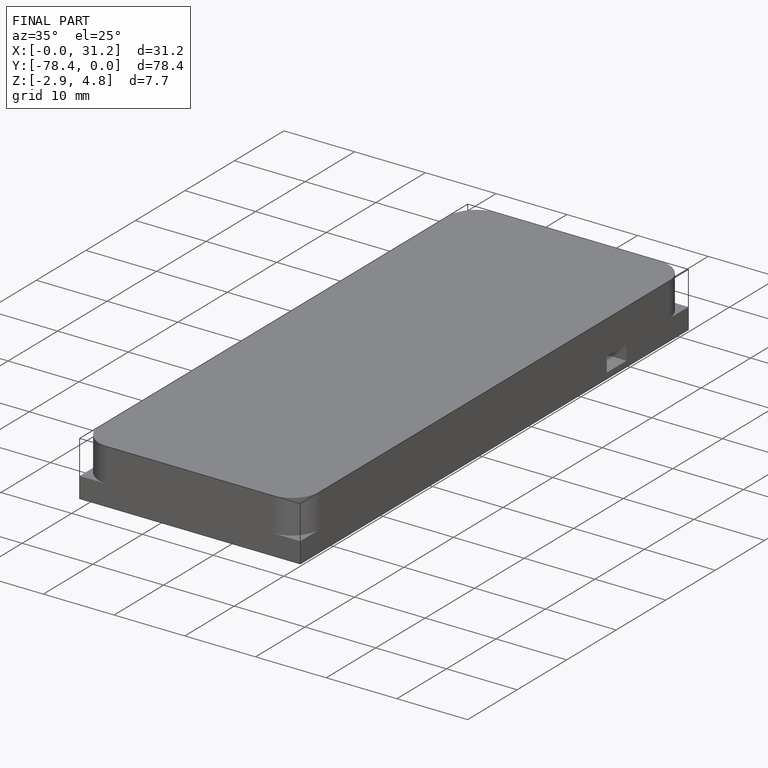
[diagram: finished part — iso view with bounding-box wireframe]
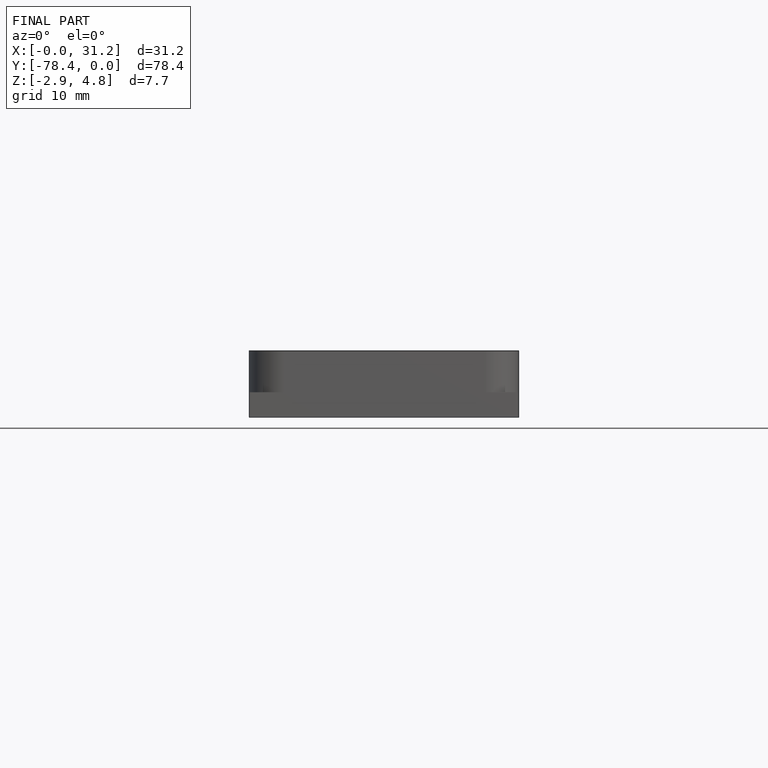
[diagram: finished part — front view with bounding-box wireframe]
